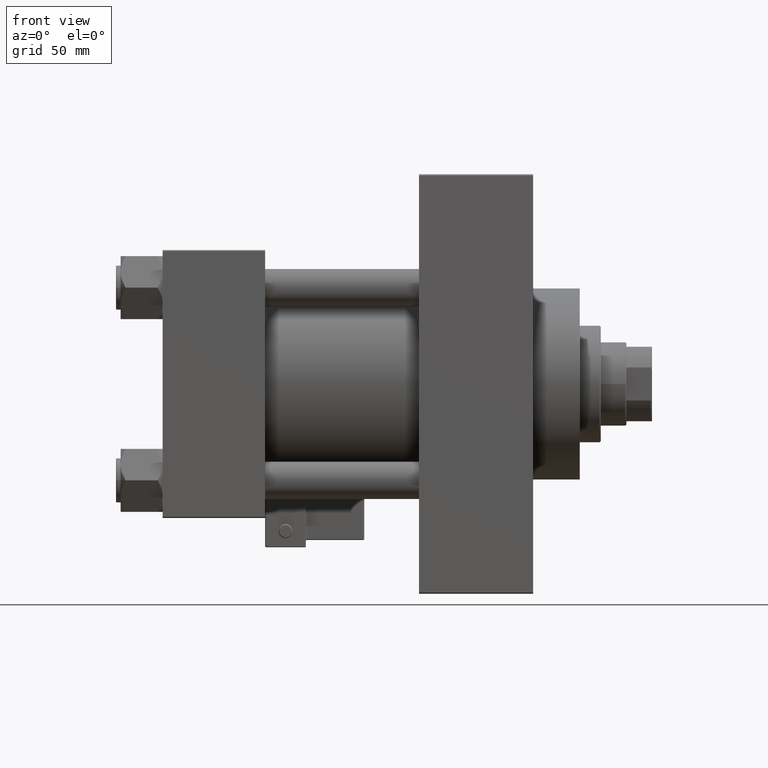
[diagram: clean part render]
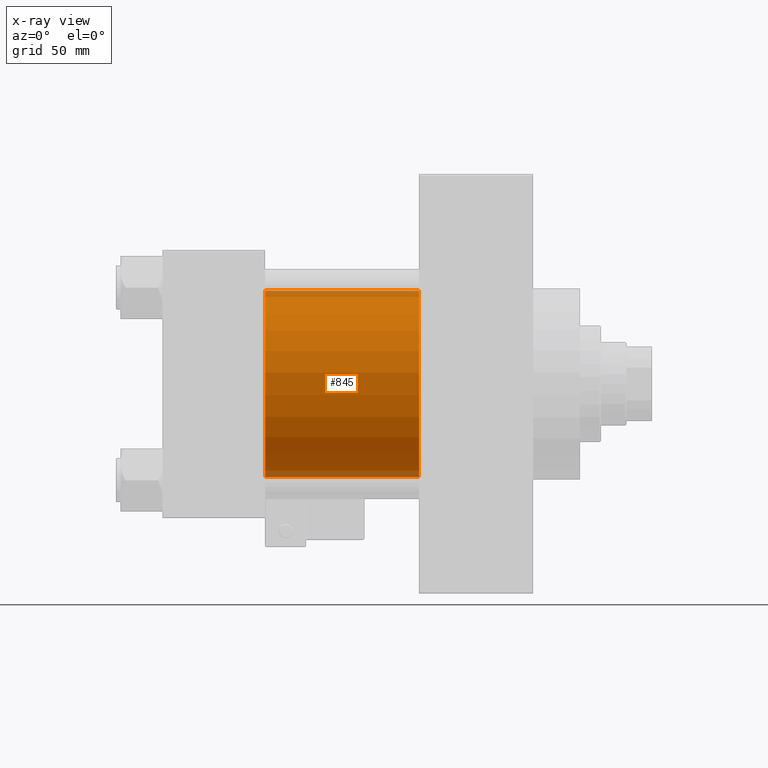
[diagram: x-ray — body ghosted, one internal face saturated and labeled with its STEP entity id]
A machine part, front view, then the same camera in x-ray: the body is ghosted and one INTERNAL B-rep face — a face not visible from any outside direction — is saturated and labeled: STEP entity #845.
In plain terms, the highlighted cylindrical surface (partial cylindrical patch) has radius 40 mm, axis along (-1, -0, -0).
Its self-contained STEP definition (entity closure, byte-faithful):
#19 = ORIENTED_EDGE ( 'NONE', *, *, #40480, .F. ) ;
#845 = ADVANCED_FACE ( 'NONE', ( #4906 ), #1375, .F. ) ;
#1375 = CYLINDRICAL_SURFACE ( 'NONE', #9198, 40.00000000000000000 ) ;
#1600 = DIRECTION ( 'NONE',  ( 0.000000000000000000, 0.000000000000000000, -1.000000000000000000 ) ) ;
#1753 = LINE ( 'NONE', #14345, #2586 ) ;
#2105 = AXIS2_PLACEMENT_3D ( 'NONE', #29101, #40917, #1600 ) ;
#2586 = VECTOR ( 'NONE', #6039, 1000.000000000000000 ) ;
#4044 = EDGE_LOOP ( 'NONE', ( #4759, #5413, #36174, #19 ) ) ;
#4759 = ORIENTED_EDGE ( 'NONE', *, *, #9299, .T. ) ;
#4906 = FACE_OUTER_BOUND ( 'NONE', #4044, .T. ) ;
#5037 = DIRECTION ( 'NONE',  ( -1.000000000000000000, -0.000000000000000000, -0.000000000000000000 ) ) ;
#5413 = ORIENTED_EDGE ( 'NONE', *, *, #37143, .T. ) ;
#6039 = DIRECTION ( 'NONE',  ( -1.000000000000000000, -0.000000000000000000, -0.000000000000000000 ) ) ;
#6791 = CIRCLE ( 'NONE', #14055, 40.00000000000000000 ) ;
#8547 = CIRCLE ( 'NONE', #2105, 40.00000000000000000 ) ;
#9198 = AXIS2_PLACEMENT_3D ( 'NONE', #39441, #20803, #35423 ) ;
#9299 = EDGE_CURVE ( 'NONE', #34939, #14884, #8547, .T. ) ;
#13413 = VERTEX_POINT ( 'NONE', #21775 ) ;
#13799 = DIRECTION ( 'NONE',  ( 0.000000000000000000, 0.000000000000000000, -1.000000000000000000 ) ) ;
#14055 = AXIS2_PLACEMENT_3D ( 'NONE', #17595, #48322, #13799 ) ;
#14345 = CARTESIAN_POINT ( 'NONE',  ( 110.0000000000000000, -2.602085213965210642E-15, 40.00000000000000000 ) ) ;
#14884 = VERTEX_POINT ( 'NONE', #35909 ) ;
#17595 = CARTESIAN_POINT ( 'NONE',  ( 44.00000000000000000, -2.602085213965210642E-15, 0.000000000000000000 ) ) ;
#19932 = CARTESIAN_POINT ( 'NONE',  ( 110.0000000000000000, 2.296501982624201990E-15, -40.00000000000000000 ) ) ;
#20803 = DIRECTION ( 'NONE',  ( -1.000000000000000000, -0.000000000000000000, -0.000000000000000000 ) ) ;
#21775 = CARTESIAN_POINT ( 'NONE',  ( 44.00000000000000000, 2.296501982624201990E-15, -40.00000000000000000 ) ) ;
#23626 = CARTESIAN_POINT ( 'NONE',  ( 44.00000000000000000, -2.602085213965210642E-15, 40.00000000000000000 ) ) ;
#25519 = VERTEX_POINT ( 'NONE', #23626 ) ;
#27564 = CARTESIAN_POINT ( 'NONE',  ( 110.0000000000000000, -2.602085213965210642E-15, 40.00000000000000000 ) ) ;
#29101 = CARTESIAN_POINT ( 'NONE',  ( 110.0000000000000000, -2.602085213965210642E-15, 0.000000000000000000 ) ) ;
#34808 = VECTOR ( 'NONE', #5037, 1000.000000000000000 ) ;
#34939 = VERTEX_POINT ( 'NONE', #27564 ) ;
#35423 = DIRECTION ( 'NONE',  ( 0.000000000000000000, 0.000000000000000000, 1.000000000000000000 ) ) ;
#35909 = CARTESIAN_POINT ( 'NONE',  ( 110.0000000000000000, 2.296501982624201990E-15, -40.00000000000000000 ) ) ;
#36174 = ORIENTED_EDGE ( 'NONE', *, *, #44935, .F. ) ;
#37143 = EDGE_CURVE ( 'NONE', #14884, #13413, #39819, .T. ) ;
#39441 = CARTESIAN_POINT ( 'NONE',  ( 110.0000000000000000, -2.602085213965210642E-15, 0.000000000000000000 ) ) ;
#39819 = LINE ( 'NONE', #19932, #34808 ) ;
#40480 = EDGE_CURVE ( 'NONE', #34939, #25519, #1753, .T. ) ;
#40917 = DIRECTION ( 'NONE',  ( 1.000000000000000000, 0.000000000000000000, 0.000000000000000000 ) ) ;
#44935 = EDGE_CURVE ( 'NONE', #25519, #13413, #6791, .T. ) ;
#48322 = DIRECTION ( 'NONE',  ( 1.000000000000000000, 0.000000000000000000, 0.000000000000000000 ) ) ;